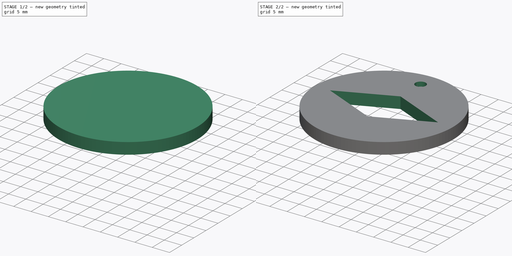
[diagram: build sequence overview — one tinted view per stage of 2, left to right]
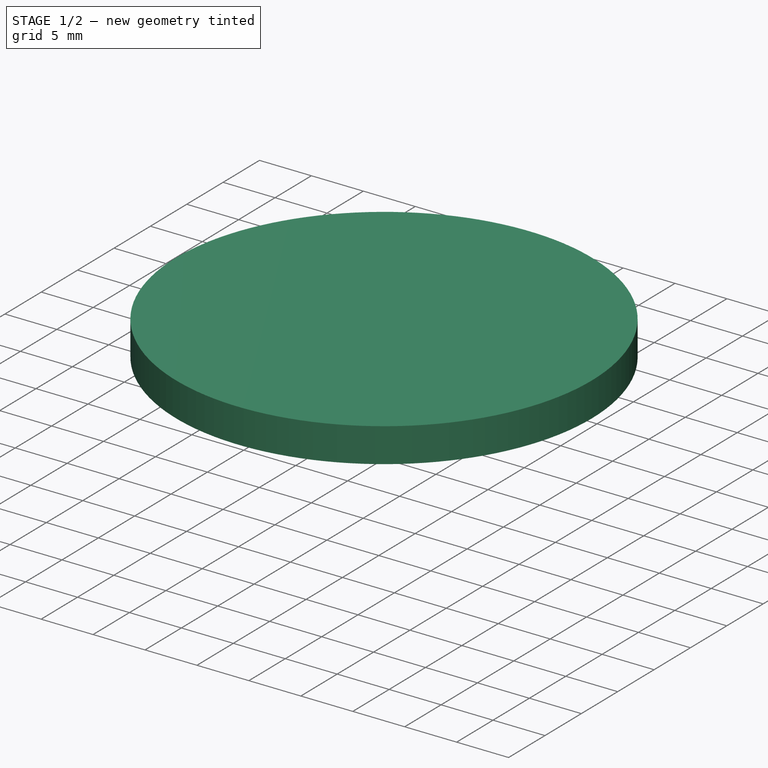
[diagram: stage 1 of 2 — iso view after this stage's code; geometry added in this stage tinted green]
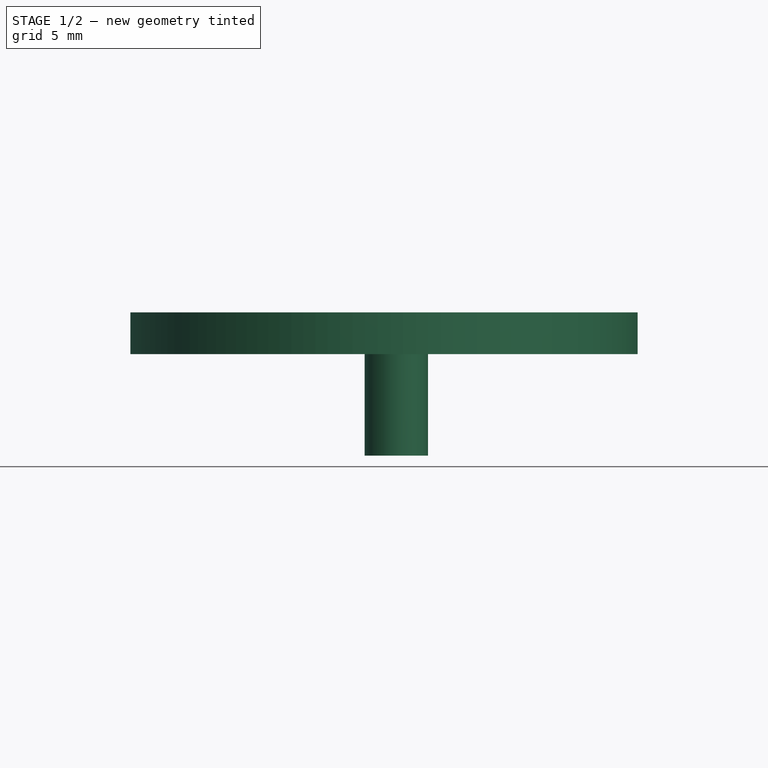
[diagram: stage 1 of 2 — front view after this stage's code; geometry added in this stage tinted green]
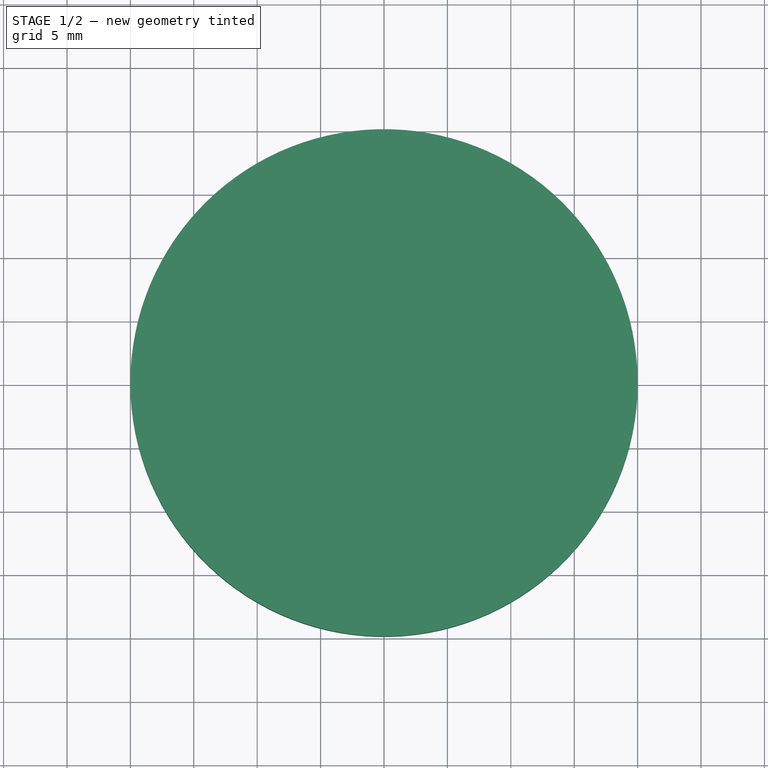
[diagram: stage 1 of 2 — top view after this stage's code; geometry added in this stage tinted green]
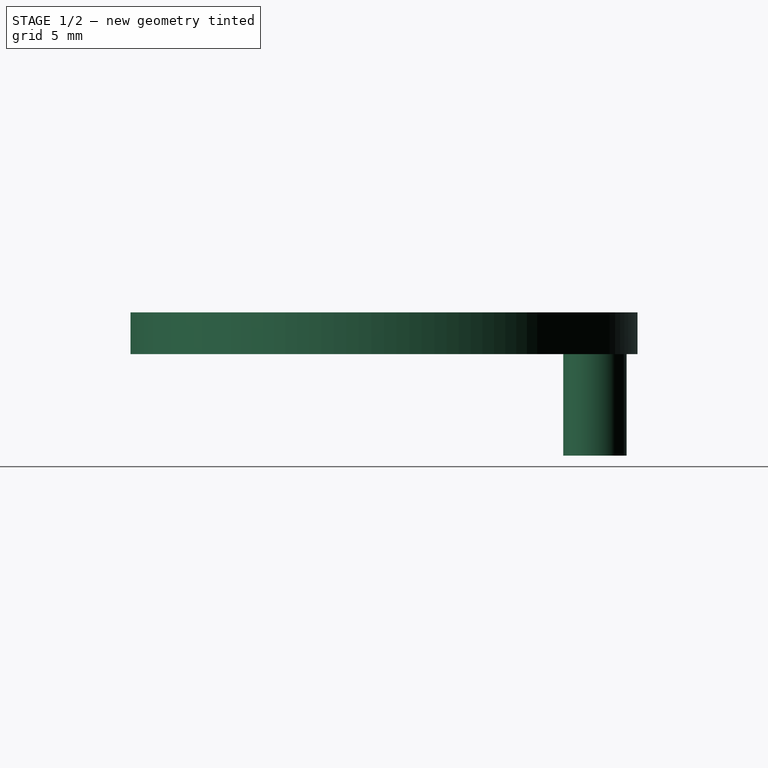
[diagram: stage 1 of 2 — right view after this stage's code; geometry added in this stage tinted green]
FCSTD DOCUMENT  (FreeCAD 0.16R6707 (Git))
Label: T5-ej1
License: CreativeCommons Attribution-ShareAlike
LicenseURL: http://creativecommons.org/licenses/by-sa/4.0/
objects: Sketcher::SketchObject×3, Part::Feature×3, PartDesign::Pocket×2, App::DocumentObjectGroup×2, Part::Cylinder×1, Part::FeaturePython×1, PartDesign::Pad×1, Part::Cut×1
note: 15 computed .brp shape members not serialized (recipe doc carries the construction recipe); baked Part::Feature solids carry a one-line shape summary decoded from their .brp

FEATURE [Part::Cylinder] Cylinder  label="casino-chip-main body"
  Angle = 360
  Height = 3.3
  Radius = 20
FEATURE [Part::Feature] logo_modik001001  label="logo_modik002"
  Placement = pos=(-9.30912,19.6503,-8.32768) rot=(0.944958,-0.326481,0.021554;2.05061rad)
  shape: bbox 269.7 x 195.3 x 161.8 mm, 26 faces, 0 solids (baked)
FEATURE [App::DocumentObjectGroup] Group001  label="Casino-chip-src"
  Group = -> [Cylinder,Pocket,Pocket001,logo_modik001001]
FEATURE [Part::FeaturePython] Clone  label="Clone of logo_modik002"  # Draft clone (typed FeaturePython)
  Objects = -> [logo_modik001001]
  Placement = pos=(8.69088,27.6503,-6.3277) rot=(1,0,0;1.5708rad)
  Scale = (0.3,0.3,0.3)
FEATURE [Sketcher::SketchObject] Sketch002
  ExternalGeometry = -> [Clone]
  Placement = pos=(8.69088,27.6503,1.99746) rot=(1,0,0;3.14159rad)
  Support = -> Clone [Face14]
  sketch-geometry (5):
    g0: Circle CenterX=-7.72299 CenterY=11.017 CenterZ=0 NormalX=0 NormalY=0 NormalZ=1 Radius=2.5
    g1: LineSegment [constr] StartX=-11.6513 StartY=10.6242 StartZ=0 EndX=-4.49716 EndY=17.7783 EndZ=0
    g2: LineSegment [constr] StartX=-9.37043 StartY=8.51696 StartZ=0 EndX=-3.44179 EndY=8.51696 EndZ=0
    g3: LineSegment [constr] StartX=-10.7182 StartY=11.5573 StartZ=0 EndX=-11.6904 EndY=12.3031 EndZ=0
    g4: LineSegment [constr] StartX=-7.74592 StartY=8.51696 StartZ=0 EndX=-7.74592 EndY=7.29162 EndZ=0
  constraints (13):
    c: Radius(g0) = 2.5
    c: Tangent(g2,g0)
    c: Tangent(g1,g0)
    c: Parallel(g1,g-3)
    c: PointOnObject(g3,g1)
    c: PointOnObject(g3,g-3)
    c: PointOnObject(g4,g2)
    c: PointOnObject(g4,g-4)
    c: Vertical(g4)
    c: Equal(g4,g3)
    c: Parallel(g2,g-4)
    c: Distance(g3) = 1.22534
    c: Distance(g4) = 1.22534
FEATURE [PartDesign::Pad] Pad
  Length = 10
  Length2 = 100
  Placement = pos=(8.69088,27.6503,-6.3277) rot=(1,0,0;1.5708rad)
  Sketch = -> Sketch002
  Type = 0
FEATURE [Part::Cut] Cut001  label="Llavero Modik"
  Base = -> Clone
  Placement = pos=(1,0,0) rot=(0,0,1;0rad)
  Tool = -> Pad
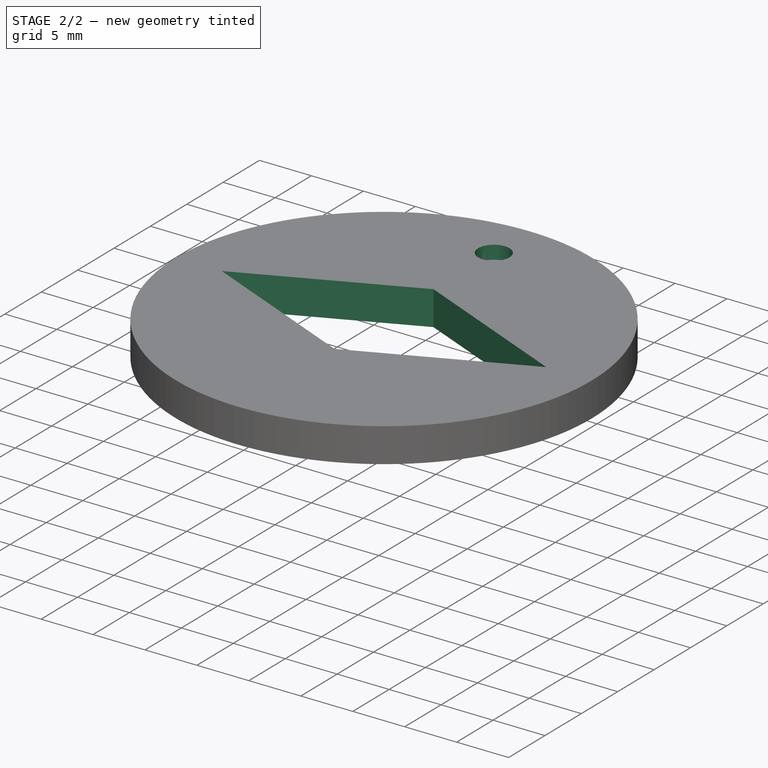
[diagram: stage 2 of 2 — iso view after this stage's code; geometry added in this stage tinted green]
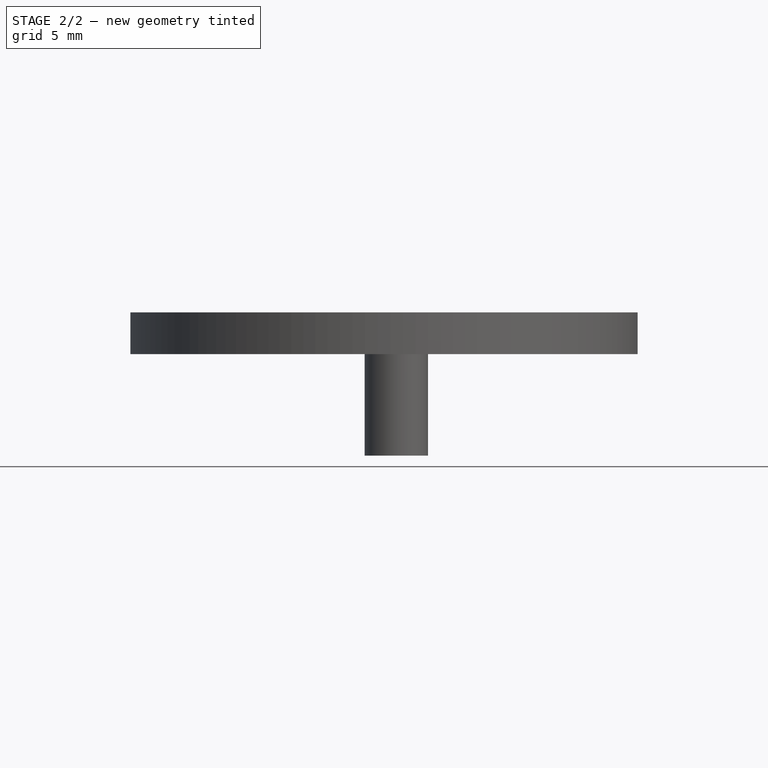
[diagram: stage 2 of 2 — front view after this stage's code; geometry added in this stage tinted green]
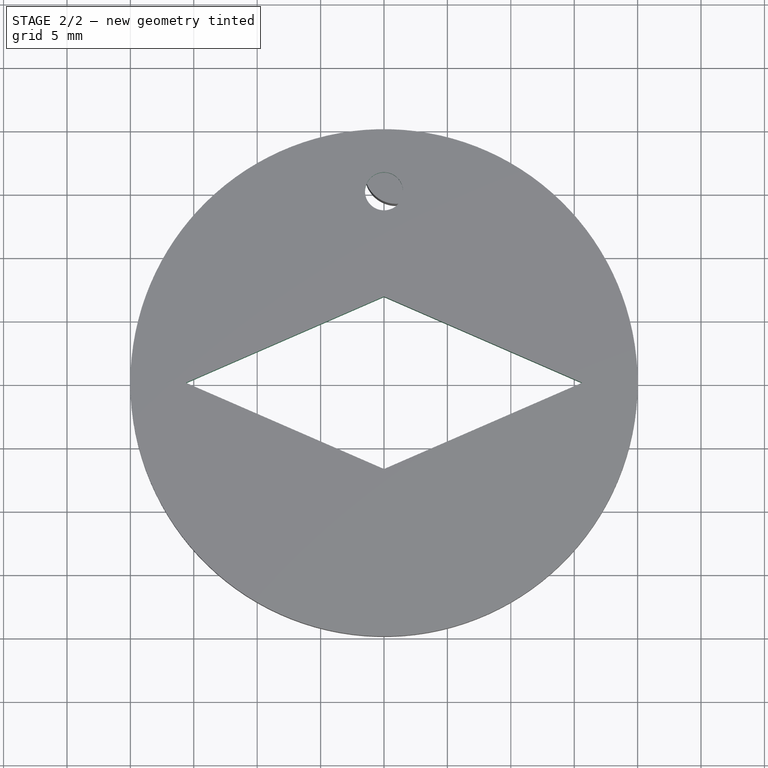
[diagram: stage 2 of 2 — top view after this stage's code; geometry added in this stage tinted green]
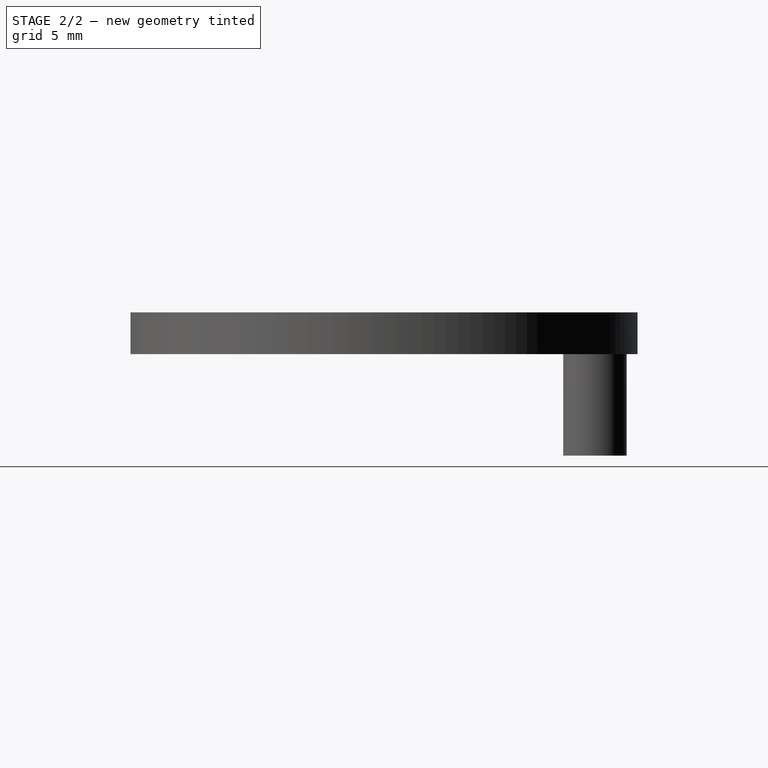
[diagram: stage 2 of 2 — right view after this stage's code; geometry added in this stage tinted green]
FEATURE [Sketcher::SketchObject] Sketch  label="hole-sketch"
  Placement = pos=(0,0,3.3) rot=(0,0,1;0rad)
  Support = -> Cylinder [Face2]
  sketch-geometry (1):
    g0: Circle CenterX=0 CenterY=15.1 CenterZ=0 NormalX=0 NormalY=0 NormalZ=1 Radius=1.5
  constraints (3):
    c: Radius(g0) = 1.5
    c: PointOnObject(g0,g-2)
    c: DistanceY(g-1,g0) = 15.1
FEATURE [PartDesign::Pocket] Pocket  label="casino-chip-key-chain"
  Length = 5
  Sketch = -> Sketch
  Type = 1
FEATURE [Part::Feature] Sweep  label="key-ring-model-1"
  Placement = pos=(0.8,24.7546,1.6391) rot=(0.333333,0.881917,0.333333;1.67867rad)
  shape: bbox 3.25 x 27.05 x 26.3 mm, 4 faces (baked)
FEATURE [Part::Feature] Cut  label="key-model-1"
  Placement = pos=(7.53024,31.0266,0) rot=(0,0,1;2.79253rad)
  shape: bbox 54.12 x 28.51 x 2.3 mm, 44 faces (baked)
FEATURE [App::DocumentObjectGroup] Group  label="Assembly"
  Group = -> [Sweep,Cut]
FEATURE [Sketcher::SketchObject] Sketch001
  Placement = pos=(0,0,3.3) rot=(0,0,1;0rad)
  Support = -> Pocket [Face2]
  sketch-geometry (4):
    g0: LineSegment StartX=-15.6204 StartY=0 StartZ=0 EndX=0 EndY=-6.80096 EndZ=0
    g1: LineSegment StartX=0 StartY=-6.80096 StartZ=0 EndX=15.6204 EndY=0 EndZ=0
    g2: LineSegment StartX=15.6204 StartY=0 StartZ=0 EndX=0 EndY=6.80096 EndZ=0
    g3: LineSegment StartX=0 StartY=6.80096 StartZ=0 EndX=-15.6204 EndY=0 EndZ=0
  constraints (8):
    c: Coincident(g0,g1)
    c: Coincident(g1,g2)
    c: Coincident(g2,g3)
    c: Coincident(g3,g0)
    c: PointOnObject(g0,g-1)
    c: Symmetric(g1,g0,g-2)
    c: PointOnObject(g2,g-2)
    c: Symmetric(g0,g2,g-1)
FEATURE [PartDesign::Pocket] Pocket001
  Length = 5
  Sketch = -> Sketch001
  Type = 0
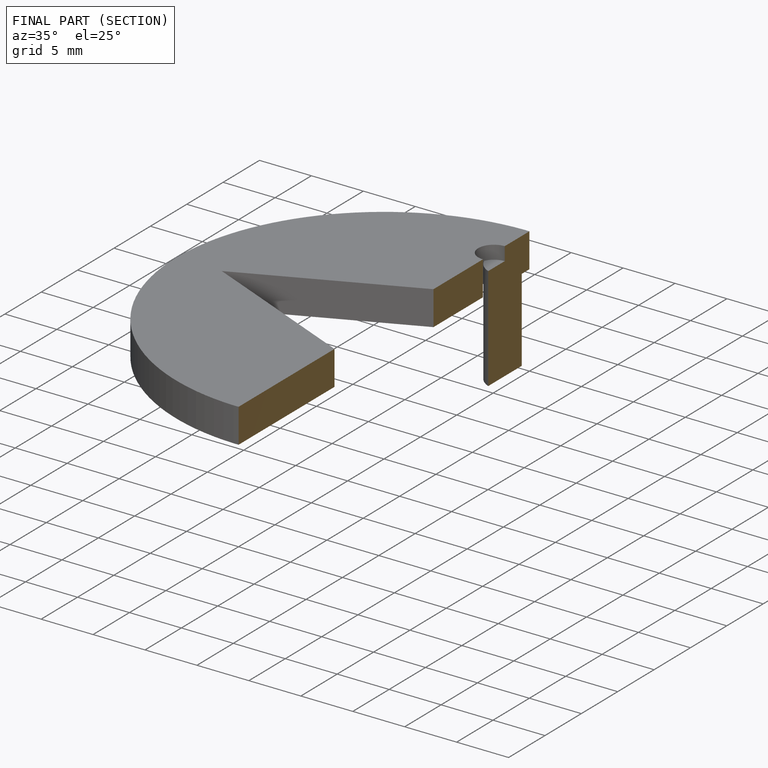
[diagram: finished part — half-section view (interior)]
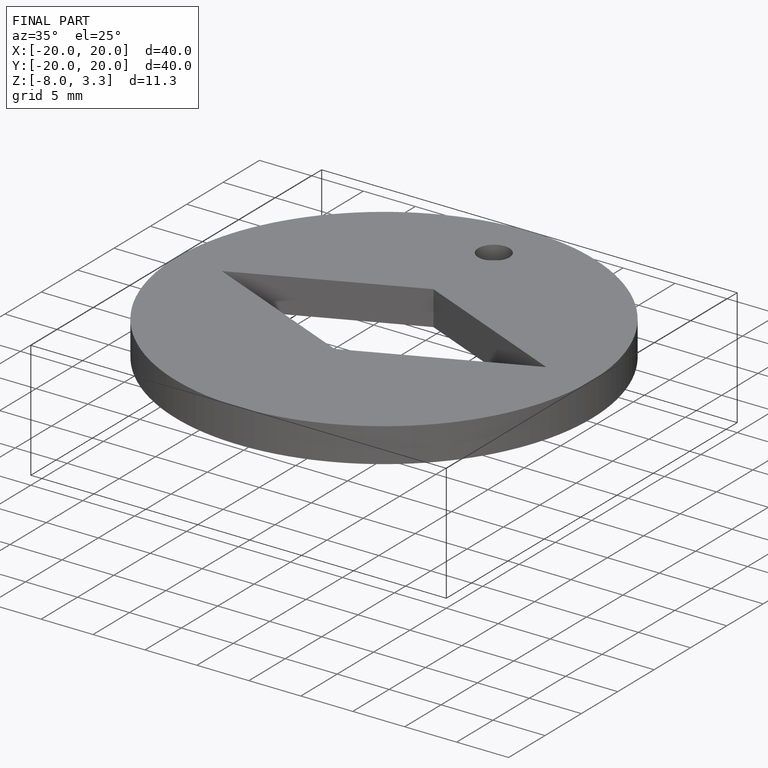
[diagram: finished part — iso view with bounding-box wireframe]
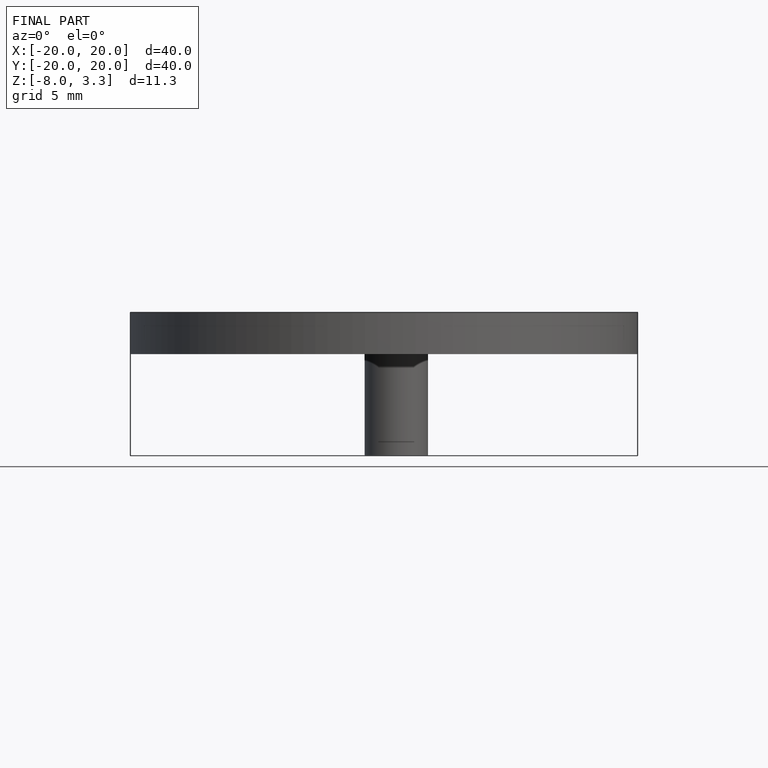
[diagram: finished part — front view with bounding-box wireframe]
